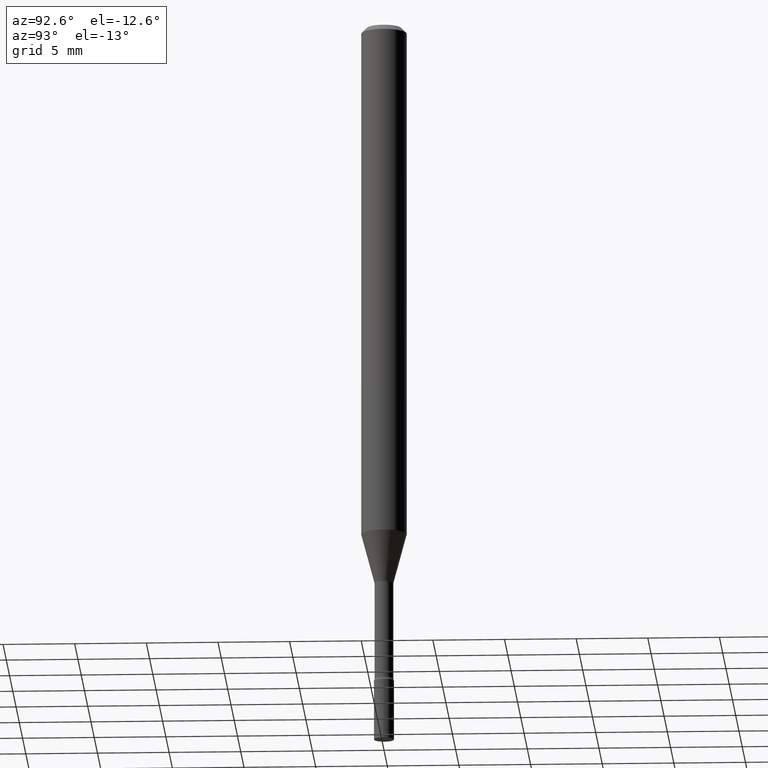
[diagram: clean part render]
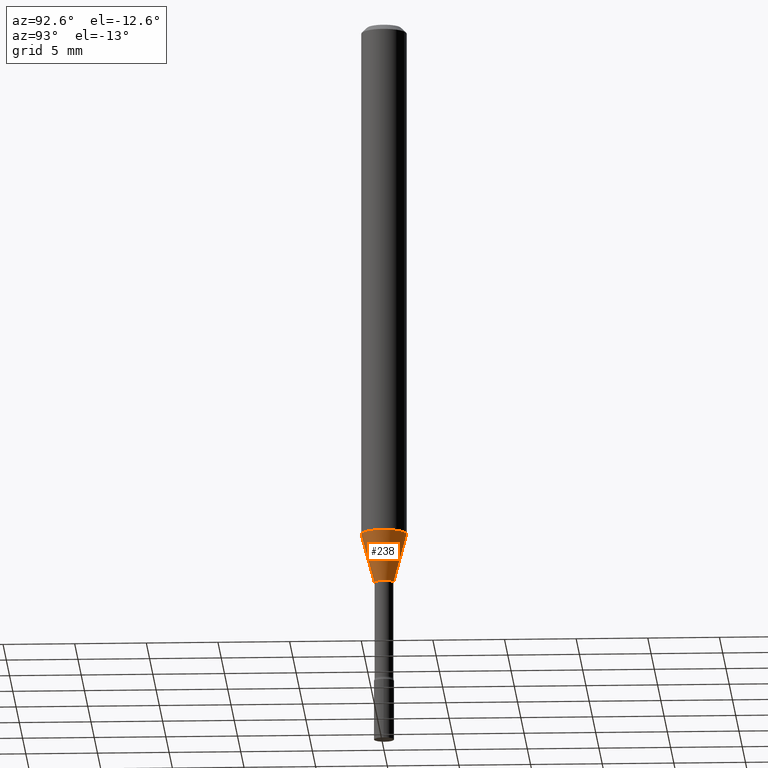
[diagram: same view with one face highlighted and labeled with its STEP entity id]
A machine part, auxiliary view. The second image highlights one B-rep face of the part: STEP entity #238.
In plain terms, the highlighted conical surface has half-angle 15 deg.
Its self-contained STEP definition (entity closure, byte-faithful):
#5 = AXIS2_PLACEMENT_3D ( 'NONE', #472, #191, #270 ) ;
#12 = CARTESIAN_POINT ( 'NONE',  ( -1.840786654675984298E-16, -0.02636111260566941991, -1.558092501787273099 ) ) ;
#50 = VERTEX_POINT ( 'NONE', #181 ) ;
#52 = VECTOR ( 'NONE', #173, 39.37007874015748854 ) ;
#68 = DIRECTION ( 'NONE',  ( -2.445437507038217742E-29, 3.491526161002970435E-15, 1.000000000000000000 ) ) ;
#83 = EDGE_CURVE ( 'NONE', #392, #240, #226, .T. ) ;
#104 = CARTESIAN_POINT ( 'NONE',  ( 3.156980902676104924E-16, 0.02636111260565854320, -1.558092501787273099 ) ) ;
#116 = ORIENTED_EDGE ( 'NONE', *, *, #254, .F. ) ;
#126 = EDGE_CURVE ( 'NONE', #50, #392, #518, .T. ) ;
#133 = DIRECTION ( 'NONE',  ( -6.982962677686265922E-15, -1.000000000000000000, 0.000000000000000000 ) ) ;
#150 = CIRCLE ( 'NONE', #5, 0.06250000000000000000 ) ;
#151 = CARTESIAN_POINT ( 'NONE',  ( 3.810217843305608838E-29, -5.440120731252832209E-15, -1.558092501787273099 ) ) ;
#173 = DIRECTION ( 'NONE',  ( -1.807323732225326195E-15, -0.2588190451025176309, 0.9659258262890690894 ) ) ;
#174 = CARTESIAN_POINT ( 'NONE',  ( 3.810217843305608838E-29, -5.440120731252832209E-15, -1.558092501787273099 ) ) ;
#180 = FACE_OUTER_BOUND ( 'NONE', #514, .T. ) ;
#181 = CARTESIAN_POINT ( 'NONE',  ( -1.840786654675984298E-16, -0.02636111260566941991, -1.558092501787273099 ) ) ;
#191 = DIRECTION ( 'NONE',  ( -2.445437507038217742E-29, 3.491526161002970435E-15, 1.000000000000000000 ) ) ;
#202 = ORIENTED_EDGE ( 'NONE', *, *, #427, .F. ) ;
#219 = CARTESIAN_POINT ( 'NONE',  ( -4.364351673553569595E-16, -0.06250000000000498213, -1.423220337902600496 ) ) ;
#226 = LINE ( 'NONE', #343, #274 ) ;
#233 = CARTESIAN_POINT ( 'NONE',  ( 4.440892098500972274E-16, 0.06249999999999501094, -1.423220337902601162 ) ) ;
#238 = ADVANCED_FACE ( 'NONE', ( #180 ), #378, .T. ) ;
#240 = VERTEX_POINT ( 'NONE', #233 ) ;
#242 = VERTEX_POINT ( 'NONE', #219 ) ;
#254 = EDGE_CURVE ( 'NONE', #50, #242, #345, .T. ) ;
#270 = DIRECTION ( 'NONE',  ( -6.982962677686265922E-15, -1.000000000000000000, 4.370956789862821150E-15 ) ) ;
#274 = VECTOR ( 'NONE', #314, 39.37007874015748143 ) ;
#309 = ORIENTED_EDGE ( 'NONE', *, *, #126, .T. ) ;
#314 = DIRECTION ( 'NONE',  ( 1.839019923739596371E-15, 0.2588190451025244032, 0.9659258262890673130 ) ) ;
#322 = AXIS2_PLACEMENT_3D ( 'NONE', #174, #495, #133 ) ;
#343 = CARTESIAN_POINT ( 'NONE',  ( 1.873069706851235602E-16, 0.02636111260565854320, -1.558092501787273099 ) ) ;
#345 = LINE ( 'NONE', #12, #52 ) ;
#378 = CONICAL_SURFACE ( 'NONE', #451, 0.02636111260566398329, 0.2617993877991496854 ) ;
#392 = VERTEX_POINT ( 'NONE', #104 ) ;
#427 = EDGE_CURVE ( 'NONE', #242, #240, #150, .T. ) ;
#451 = AXIS2_PLACEMENT_3D ( 'NONE', #151, #68, #453 ) ;
#453 = DIRECTION ( 'NONE',  ( -6.982962677686265922E-15, -1.000000000000000000, 0.000000000000000000 ) ) ;
#472 = CARTESIAN_POINT ( 'NONE',  ( 3.480396395086626474E-29, -4.969211042658417815E-15, -1.423220337902600718 ) ) ;
#495 = DIRECTION ( 'NONE',  ( -2.445437507038217742E-29, 3.491526161002970435E-15, 1.000000000000000000 ) ) ;
#514 = EDGE_LOOP ( 'NONE', ( #309, #519, #202, #116 ) ) ;
#518 = CIRCLE ( 'NONE', #322, 0.02636111260566398329 ) ;
#519 = ORIENTED_EDGE ( 'NONE', *, *, #83, .T. ) ;